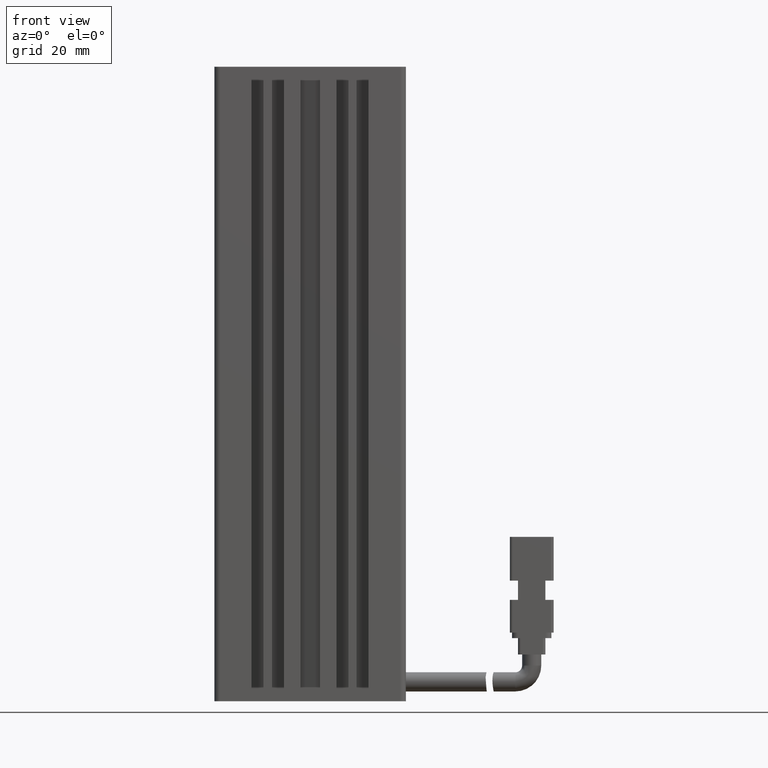
[diagram: clean part render]
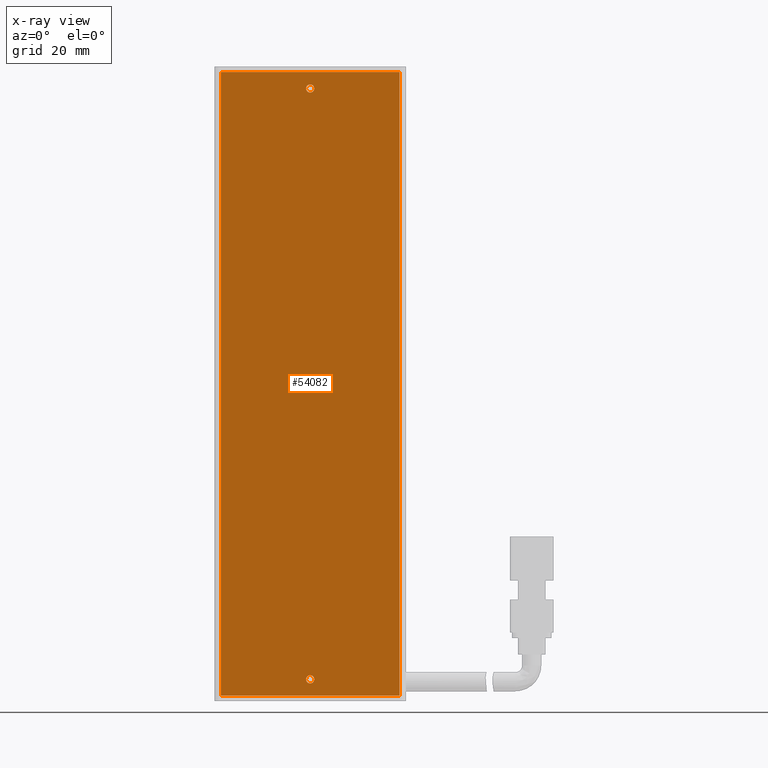
[diagram: x-ray — body ghosted, one internal face saturated and labeled with its STEP entity id]
A machine part, front view, then the same camera in x-ray: the body is ghosted and one INTERNAL B-rep face — a face not visible from any outside direction — is saturated and labeled: STEP entity #54082.
In plain terms, the highlighted planar face has unit normal (0, 1, 0).
Its self-contained STEP definition (entity closure, byte-faithful):
#1480 = EDGE_CURVE ( 'NONE', #54246, #19220, #33570, .T. ) ;
#3947 = EDGE_LOOP ( 'NONE', ( #14441, #32027 ) ) ;
#4859 = CARTESIAN_POINT ( 'NONE',  ( 57.27537974683544100, 32.09073232304837800, -57.99999999999998600 ) ) ;
#6940 = CARTESIAN_POINT ( 'NONE',  ( 57.27537974683544100, 32.09073232304837800, -172.0000000000000000 ) ) ;
#7307 = DIRECTION ( 'NONE',  ( -1.000000000000000000, -0.0000000000000000000, -1.387778780781445400E-016 ) ) ;
#7702 = ORIENTED_EDGE ( 'NONE', *, *, #51041, .F. ) ;
#7755 = ORIENTED_EDGE ( 'NONE', *, *, #14106, .F. ) ;
#8606 = VERTEX_POINT ( 'NONE', #51792 ) ;
#8666 = ORIENTED_EDGE ( 'NONE', *, *, #28309, .F. ) ;
#8802 = VECTOR ( 'NONE', #9137, 1000.000000000000000 ) ;
#9137 = DIRECTION ( 'NONE',  ( 1.000000000000000000, 0.0000000000000000000, 1.387778780781445400E-016 ) ) ;
#9364 = ORIENTED_EDGE ( 'NONE', *, *, #1480, .F. ) ;
#11725 = EDGE_CURVE ( 'NONE', #8606, #12721, #26342, .T. ) ;
#12721 = VERTEX_POINT ( 'NONE', #24937 ) ;
#12913 = FACE_OUTER_BOUND ( 'NONE', #53430, .T. ) ;
#13731 = DIRECTION ( 'NONE',  ( 0.0000000000000000000, 0.0000000000000000000, 1.000000000000000000 ) ) ;
#13744 = AXIS2_PLACEMENT_3D ( 'NONE', #23876, #19807, #28298 ) ;
#14106 = EDGE_CURVE ( 'NONE', #38584, #15519, #52904, .T. ) ;
#14441 = ORIENTED_EDGE ( 'NONE', *, *, #48603, .F. ) ;
#14670 = AXIS2_PLACEMENT_3D ( 'NONE', #34330, #38387, #42648 ) ;
#15358 = CIRCLE ( 'NONE', #13744, 0.7500000000000006700 ) ;
#15519 = VERTEX_POINT ( 'NONE', #29028 ) ;
#15820 = DIRECTION ( 'NONE',  ( -1.387778780781445400E-016, 0.0000000000000000000, 1.000000000000000000 ) ) ;
#16172 = DIRECTION ( 'NONE',  ( 0.0000000000000000000, 1.000000000000000000, 0.0000000000000000000 ) ) ;
#16335 = CIRCLE ( 'NONE', #14670, 0.7500000000000006700 ) ;
#17889 = CIRCLE ( 'NONE', #34678, 0.7500000000000006700 ) ;
#18658 = EDGE_CURVE ( 'NONE', #32651, #37031, #17889, .T. ) ;
#19220 = VERTEX_POINT ( 'NONE', #6940 ) ;
#19807 = DIRECTION ( 'NONE',  ( -0.0000000000000000000, -1.000000000000000000, -0.0000000000000000000 ) ) ;
#20463 = CARTESIAN_POINT ( 'NONE',  ( 57.27537974683544100, 32.09073232304837800, -57.99999999999998600 ) ) ;
#22920 = FACE_BOUND ( 'NONE', #31812, .T. ) ;
#23876 = CARTESIAN_POINT ( 'NONE',  ( 40.92537974683543900, 32.09073232304837800, -168.9999999999999700 ) ) ;
#24535 = PLANE ( 'NONE',  #28210 ) ;
#24937 = CARTESIAN_POINT ( 'NONE',  ( 40.92537974683543900, 32.09073232304837800, -169.7499999999999700 ) ) ;
#25636 = DIRECTION ( 'NONE',  ( 0.0000000000000000000, 0.0000000000000000000, 1.000000000000000000 ) ) ;
#26208 = ORIENTED_EDGE ( 'NONE', *, *, #11725, .F. ) ;
#26342 = CIRCLE ( 'NONE', #41728, 0.7500000000000006700 ) ;
#26904 = CARTESIAN_POINT ( 'NONE',  ( 40.92537974683542500, 32.09073232304837800, -61.00000000000000000 ) ) ;
#28210 = AXIS2_PLACEMENT_3D ( 'NONE', #20463, #16172, #37077 ) ;
#28298 = DIRECTION ( 'NONE',  ( 0.0000000000000000000, 0.0000000000000000000, 1.000000000000000000 ) ) ;
#28309 = EDGE_CURVE ( 'NONE', #19220, #38584, #47237, .T. ) ;
#28436 = EDGE_CURVE ( 'NONE', #15519, #54246, #35926, .T. ) ;
#29028 = CARTESIAN_POINT ( 'NONE',  ( 24.57537974683543100, 32.09073232304837800, -57.99999999999999300 ) ) ;
#29508 = DIRECTION ( 'NONE',  ( -0.0000000000000000000, -1.000000000000000000, -0.0000000000000000000 ) ) ;
#31812 = EDGE_LOOP ( 'NONE', ( #26208, #7702 ) ) ;
#32027 = ORIENTED_EDGE ( 'NONE', *, *, #18658, .F. ) ;
#32651 = VERTEX_POINT ( 'NONE', #50540 ) ;
#32933 = VECTOR ( 'NONE', #42586, 1000.000000000000000 ) ;
#33371 = VECTOR ( 'NONE', #7307, 1000.000000000000000 ) ;
#33570 = LINE ( 'NONE', #51803, #32933 ) ;
#34330 = CARTESIAN_POINT ( 'NONE',  ( 40.92537974683542500, 32.09073232304837800, -61.00000000000000000 ) ) ;
#34678 = AXIS2_PLACEMENT_3D ( 'NONE', #26904, #39083, #13731 ) ;
#35926 = LINE ( 'NONE', #47191, #8802 ) ;
#37031 = VERTEX_POINT ( 'NONE', #38230 ) ;
#37077 = DIRECTION ( 'NONE',  ( -1.387778780781445400E-016, 0.0000000000000000000, 1.000000000000000000 ) ) ;
#38230 = CARTESIAN_POINT ( 'NONE',  ( 40.92537974683542500, 32.09073232304837800, -60.25000000000000000 ) ) ;
#38387 = DIRECTION ( 'NONE',  ( -0.0000000000000000000, -1.000000000000000000, -0.0000000000000000000 ) ) ;
#38584 = VERTEX_POINT ( 'NONE', #41583 ) ;
#39083 = DIRECTION ( 'NONE',  ( -0.0000000000000000000, -1.000000000000000000, -0.0000000000000000000 ) ) ;
#41583 = CARTESIAN_POINT ( 'NONE',  ( 24.57537974683543800, 32.09073232304837800, -172.0000000000000000 ) ) ;
#41686 = VECTOR ( 'NONE', #15820, 1000.000000000000000 ) ;
#41728 = AXIS2_PLACEMENT_3D ( 'NONE', #46490, #29508, #25636 ) ;
#42586 = DIRECTION ( 'NONE',  ( 1.387778780781445400E-016, -0.0000000000000000000, -1.000000000000000000 ) ) ;
#42648 = DIRECTION ( 'NONE',  ( 0.0000000000000000000, 0.0000000000000000000, 1.000000000000000000 ) ) ;
#45032 = CARTESIAN_POINT ( 'NONE',  ( 24.57537974683542000, 32.09073232304837800, -57.99999999999999300 ) ) ;
#46490 = CARTESIAN_POINT ( 'NONE',  ( 40.92537974683543900, 32.09073232304837800, -168.9999999999999700 ) ) ;
#47191 = CARTESIAN_POINT ( 'NONE',  ( 57.27537974683544100, 32.09073232304837800, -57.99999999999998600 ) ) ;
#47237 = LINE ( 'NONE', #53703, #33371 ) ;
#48603 = EDGE_CURVE ( 'NONE', #37031, #32651, #16335, .T. ) ;
#50540 = CARTESIAN_POINT ( 'NONE',  ( 40.92537974683542500, 32.09073232304837800, -61.75000000000000000 ) ) ;
#51041 = EDGE_CURVE ( 'NONE', #12721, #8606, #15358, .T. ) ;
#51347 = FACE_BOUND ( 'NONE', #3947, .T. ) ;
#51792 = CARTESIAN_POINT ( 'NONE',  ( 40.92537974683543900, 32.09073232304837800, -168.2499999999999700 ) ) ;
#51803 = CARTESIAN_POINT ( 'NONE',  ( 57.27537974683544100, 32.09073232304837800, -57.99999999999998600 ) ) ;
#51967 = ORIENTED_EDGE ( 'NONE', *, *, #28436, .F. ) ;
#52904 = LINE ( 'NONE', #45032, #41686 ) ;
#53430 = EDGE_LOOP ( 'NONE', ( #7755, #8666, #9364, #51967 ) ) ;
#53703 = CARTESIAN_POINT ( 'NONE',  ( 57.27537974683545500, 32.09073232304837800, -172.0000000000000000 ) ) ;
#54082 = ADVANCED_FACE ( 'NONE', ( #12913, #51347, #22920 ), #24535, .F. ) ;
#54246 = VERTEX_POINT ( 'NONE', #4859 ) ;